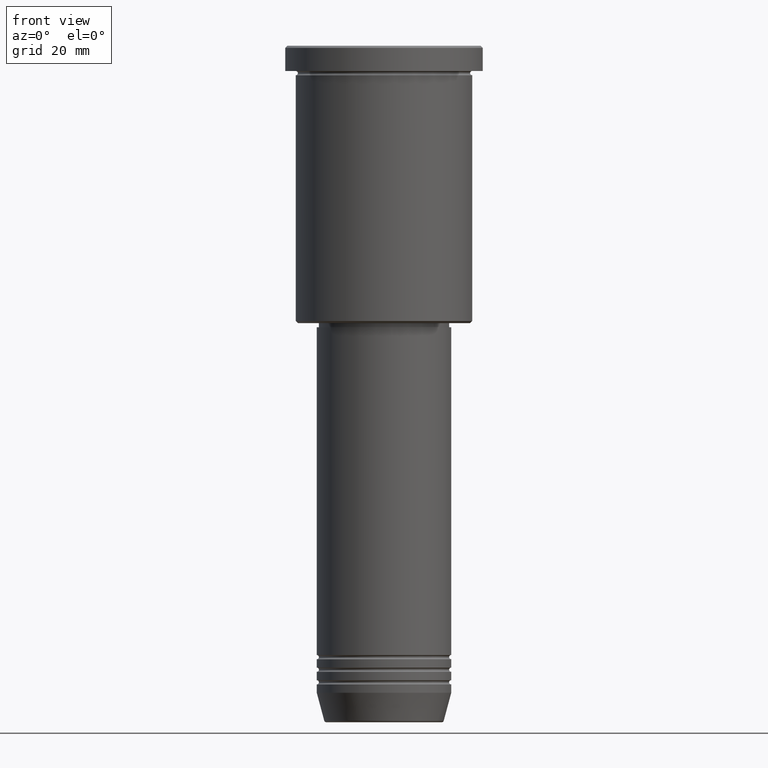
[diagram: clean part render]
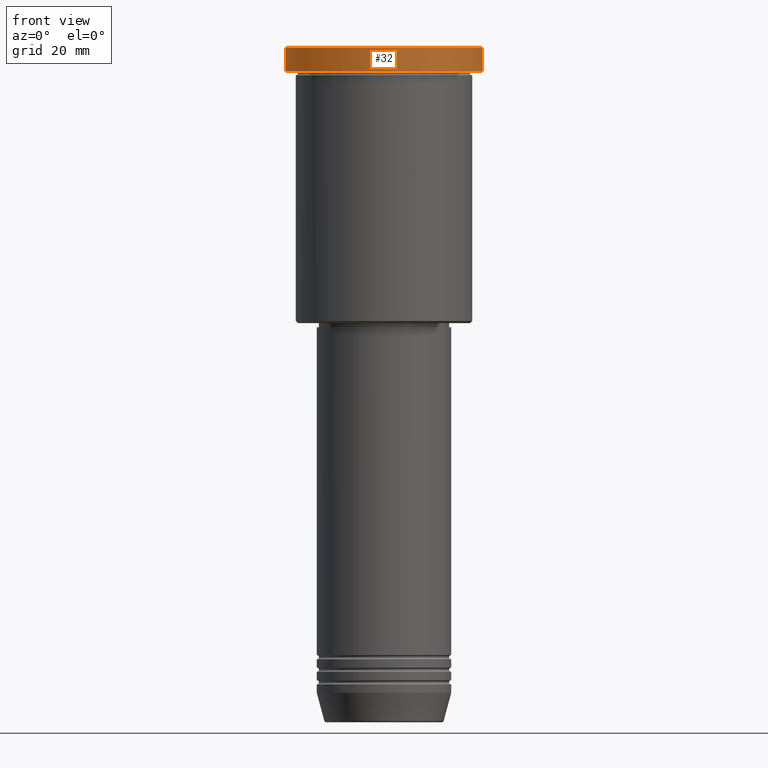
[diagram: same view with one face highlighted and labeled with its STEP entity id]
A machine part, front view. The second image highlights one B-rep face of the part: STEP entity #32.
In plain terms, the highlighted cylindrical surface (partial cylindrical patch) has radius 23.5 mm, axis along (-0, -0, 1).
Its self-contained STEP definition (entity closure, byte-faithful):
#29 = ORIENTED_EDGE ( 'NONE', *, *, #465, .T. ) ;
#32 = ADVANCED_FACE ( 'NONE', ( #665 ), #599, .T. ) ;
#55 = CIRCLE ( 'NONE', #294, 23.50000000000000000 ) ;
#91 = DIRECTION ( 'NONE',  ( -0.000000000000000000, -0.000000000000000000, 1.000000000000000000 ) ) ;
#122 = LINE ( 'NONE', #1041, #1050 ) ;
#150 = LINE ( 'NONE', #729, #937 ) ;
#282 = EDGE_CURVE ( 'NONE', #432, #943, #122, .T. ) ;
#294 = AXIS2_PLACEMENT_3D ( 'NONE', #763, #661, #670 ) ;
#342 = EDGE_LOOP ( 'NONE', ( #419, #29, #1081, #1056 ) ) ;
#378 = EDGE_CURVE ( 'NONE', #943, #991, #55, .T. ) ;
#395 = CARTESIAN_POINT ( 'NONE',  ( 23.50000000000000000, 0.000000000000000000, -0.5000000000000143219 ) ) ;
#419 = ORIENTED_EDGE ( 'NONE', *, *, #814, .F. ) ;
#432 = VERTEX_POINT ( 'NONE', #844 ) ;
#465 = EDGE_CURVE ( 'NONE', #933, #432, #847, .T. ) ;
#511 = DIRECTION ( 'NONE',  ( -0.000000000000000000, -0.000000000000000000, 1.000000000000000000 ) ) ;
#599 = CYLINDRICAL_SURFACE ( 'NONE', #662, 23.50000000000000000 ) ;
#661 = DIRECTION ( 'NONE',  ( 0.000000000000000000, 0.000000000000000000, -1.000000000000000000 ) ) ;
#662 = AXIS2_PLACEMENT_3D ( 'NONE', #679, #777, #855 ) ;
#665 = FACE_OUTER_BOUND ( 'NONE', #342, .T. ) ;
#670 = DIRECTION ( 'NONE',  ( 1.000000000000000000, 0.000000000000000000, 0.000000000000000000 ) ) ;
#679 = CARTESIAN_POINT ( 'NONE',  ( 0.000000000000000000, 0.000000000000000000, 0.000000000000000000 ) ) ;
#716 = DIRECTION ( 'NONE',  ( -0.000000000000000000, -0.000000000000000000, 1.000000000000000000 ) ) ;
#729 = CARTESIAN_POINT ( 'NONE',  ( -23.50000000000000000, 2.877919977996280320E-15, 0.000000000000000000 ) ) ;
#763 = CARTESIAN_POINT ( 'NONE',  ( 0.000000000000000000, 0.000000000000000000, -0.5000000000000143219 ) ) ;
#773 = DIRECTION ( 'NONE',  ( 1.000000000000000000, 0.000000000000000000, 0.000000000000000000 ) ) ;
#777 = DIRECTION ( 'NONE',  ( -0.000000000000000000, -0.000000000000000000, 1.000000000000000000 ) ) ;
#814 = EDGE_CURVE ( 'NONE', #933, #991, #150, .T. ) ;
#844 = CARTESIAN_POINT ( 'NONE',  ( 23.50000000000000000, 0.000000000000000000, -5.999999999999994671 ) ) ;
#847 = CIRCLE ( 'NONE', #1016, 23.50000000000000000 ) ;
#853 = CARTESIAN_POINT ( 'NONE',  ( 0.000000000000000000, 0.000000000000000000, -5.999999999999994671 ) ) ;
#855 = DIRECTION ( 'NONE',  ( 1.000000000000000000, 0.000000000000000000, 0.000000000000000000 ) ) ;
#883 = CARTESIAN_POINT ( 'NONE',  ( -23.50000000000000000, 2.877919977996280320E-15, -5.999999999999994671 ) ) ;
#933 = VERTEX_POINT ( 'NONE', #883 ) ;
#937 = VECTOR ( 'NONE', #91, 1000.000000000000000 ) ;
#943 = VERTEX_POINT ( 'NONE', #395 ) ;
#991 = VERTEX_POINT ( 'NONE', #1079 ) ;
#1016 = AXIS2_PLACEMENT_3D ( 'NONE', #853, #511, #773 ) ;
#1041 = CARTESIAN_POINT ( 'NONE',  ( 23.50000000000000000, 0.000000000000000000, 0.000000000000000000 ) ) ;
#1050 = VECTOR ( 'NONE', #716, 1000.000000000000000 ) ;
#1056 = ORIENTED_EDGE ( 'NONE', *, *, #378, .T. ) ;
#1079 = CARTESIAN_POINT ( 'NONE',  ( -23.50000000000000000, 2.877919977996280320E-15, -0.5000000000000143219 ) ) ;
#1081 = ORIENTED_EDGE ( 'NONE', *, *, #282, .T. ) ;